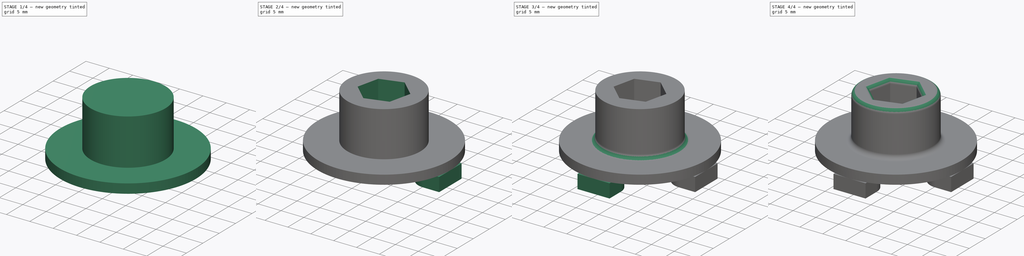
[diagram: build sequence overview — one tinted view per stage of 4, left to right]
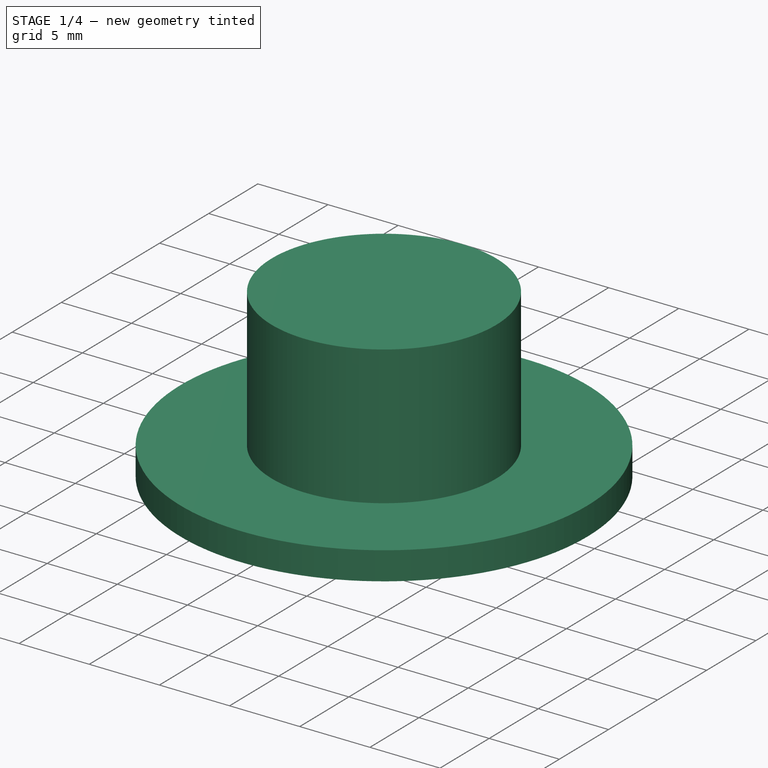
[diagram: stage 1 of 4 — iso view after this stage's code; geometry added in this stage tinted green]
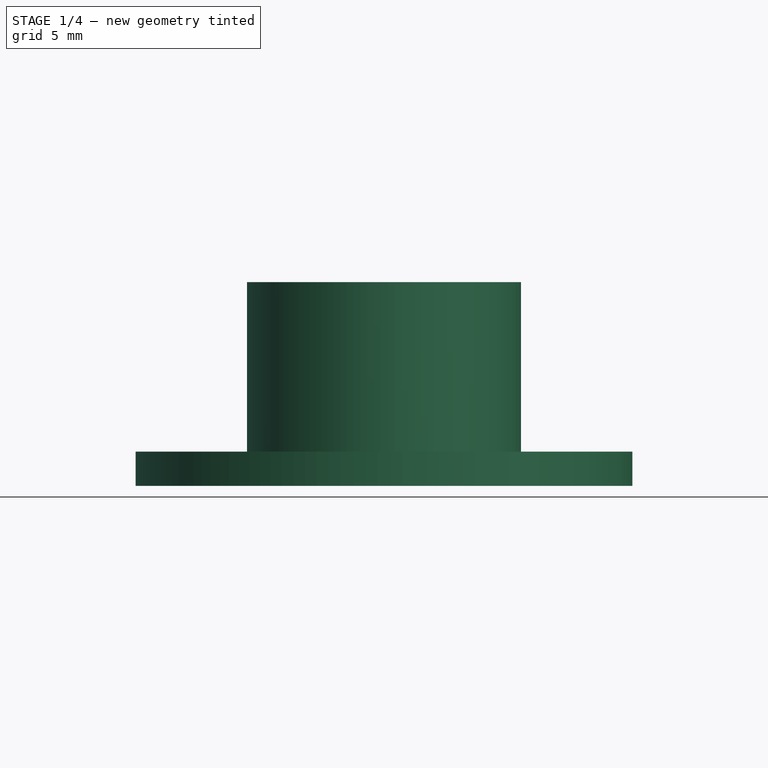
[diagram: stage 1 of 4 — front view after this stage's code; geometry added in this stage tinted green]
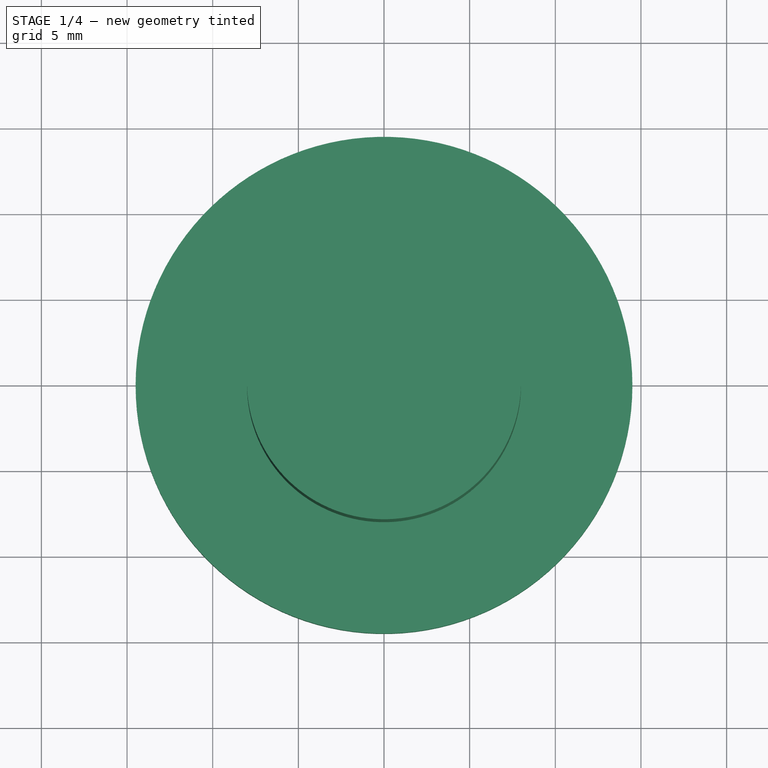
[diagram: stage 1 of 4 — top view after this stage's code; geometry added in this stage tinted green]
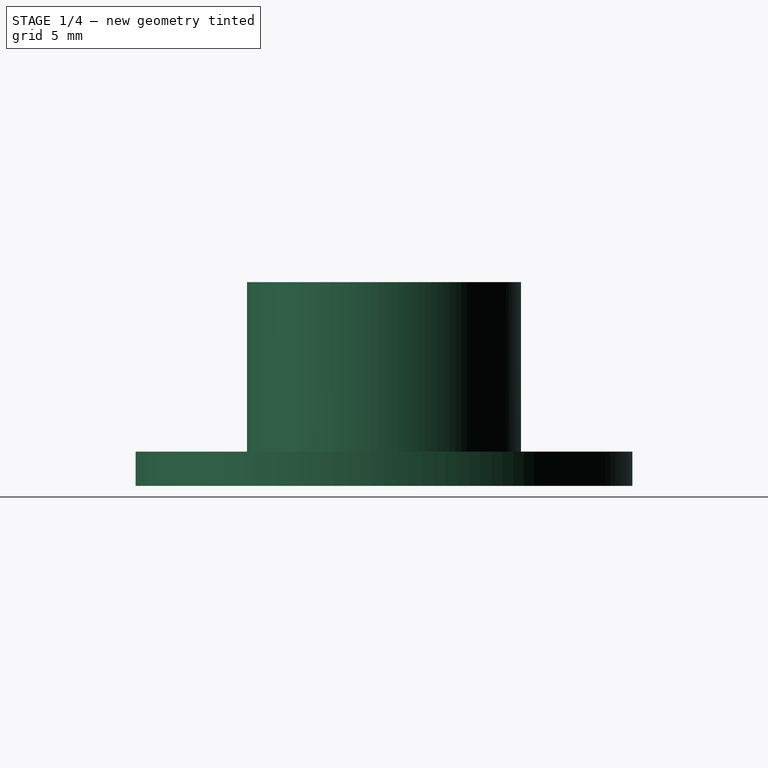
[diagram: stage 1 of 4 — right view after this stage's code; geometry added in this stage tinted green]
FCSTD DOCUMENT  (FreeCAD 0.20R29177 (Git))
Label: MotorConnectHexSocket
License: All rights reserved
LicenseURL: http://en.wikipedia.org/wiki/All_rights_reserved
objects: Sketcher::SketchObject×5, PartDesign::Pad×3, PartDesign::Fillet×3, PartDesign::Pocket×2, Spreadsheet::Sheet×1, PartDesign::PolarPattern×1, PartDesign::Body×1
note: 23 computed .brp shape members not serialized (recipe doc carries the construction recipe); baked Part::Feature solids carry a one-line shape summary decoded from their .brp

FEATURE [Spreadsheet::Sheet] Spreadsheet  label="data"
  cells = A1=centerToStand; B1(centerToStand)=11; A2=standRadius; B2(standRadius)=3.5; A3=standRectLen; B3(standRectLen)=3.5; A4=backHoleR; B4(backHoleR)=6; C4=changed frrom 5.6 to 5.7 to 6; A5=backHoleDepth; B5(backHoleDepth)=2.9; A6=hexSocketR; B6(hexSocketR)=4.965; A7=hexSocketDepth; B7(hexSocketDepth)=5; A8=topLayerPad; B8=2; A9=bottomLayerHeight; B9(bottomLayerHeight)=2; D9=bottomRadius; E9(bottomRadius)==B1 + B3; A10=standHeight; B10(standHeight)=3; D10=topLayerHeight; E10(topLayerHeight)==B7 + B5 + B8; D11=topLayerR; E11(topLayerR)==B4 + 2; F11= > centerHoleR < bottomRadius
FEATURE [Sketcher::SketchObject] Sketch  label="SketchBottom"
  FullyConstrained = true
  MapMode = 5
  Support = -> [XY_Plane]
  expr: Constraints[1] = Spreadsheet.bottomRadius
  sketch-geometry (1):
    g0: Circle CenterX=0 CenterY=0 CenterZ=0 NormalX=0 NormalY=0 NormalZ=1 AngleXU=0 Radius=14.5
  constraints (2):
    c: Coincident(g0,g-1)
    c: Radius(g0) = 14.5
FEATURE [PartDesign::Pad] Pad  label="PadBottomLayer"
  Direction = (0,0,1)
  Length = 2
  Length2 = 10
  Profile = -> Sketch
  ReferenceAxis = -> Sketch [N_Axis]
  Type = 0
  expr: Length = Spreadsheet.bottomLayerHeight
FEATURE [Sketcher::SketchObject] Sketch001  label="SketchTopLayer"
  FullyConstrained = true
  MapMode = 5
  Placement = pos=(0,0,2) rot=(0,0,1;0rad)
  Support = -> [Pad]
  expr: Constraints[1] = Spreadsheet.topLayerR
  sketch-geometry (1):
    g0: Circle CenterX=0 CenterY=0 CenterZ=0 NormalX=0 NormalY=0 NormalZ=1 AngleXU=0 Radius=8
  constraints (2):
    c: Coincident(g0,g-1)
    c: Radius(g0) = 8
FEATURE [PartDesign::Pad] Pad001  label="PadTopLayer"
  BaseFeature = -> Pad
  Direction = (0,0,1)
  Length = 9.9
  Length2 = 10
  Profile = -> Sketch001
  ReferenceAxis = -> Sketch001 [N_Axis]
  Type = 0
  expr: Length = Spreadsheet.topLayerHeight
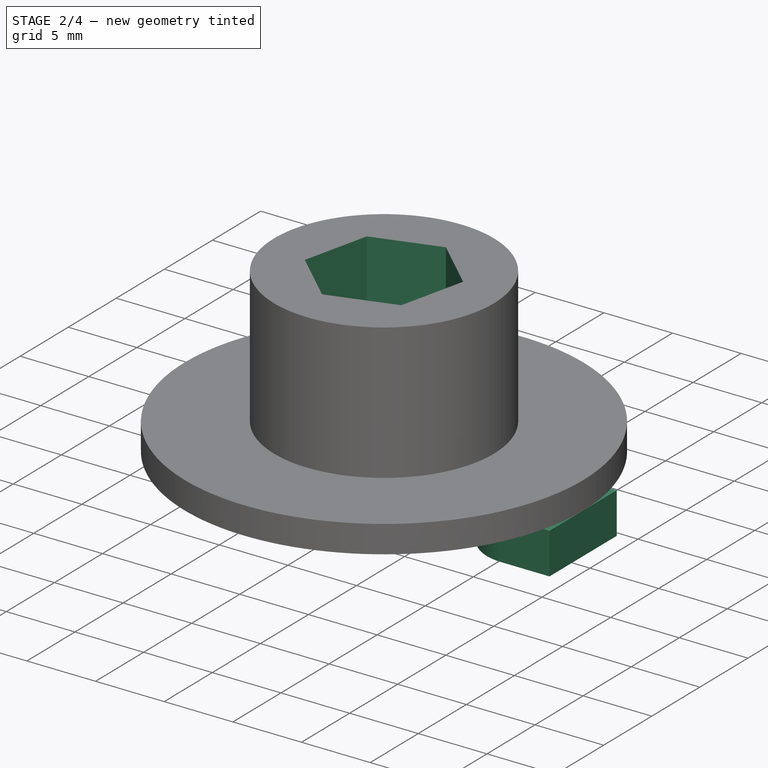
[diagram: stage 2 of 4 — iso view after this stage's code; geometry added in this stage tinted green]
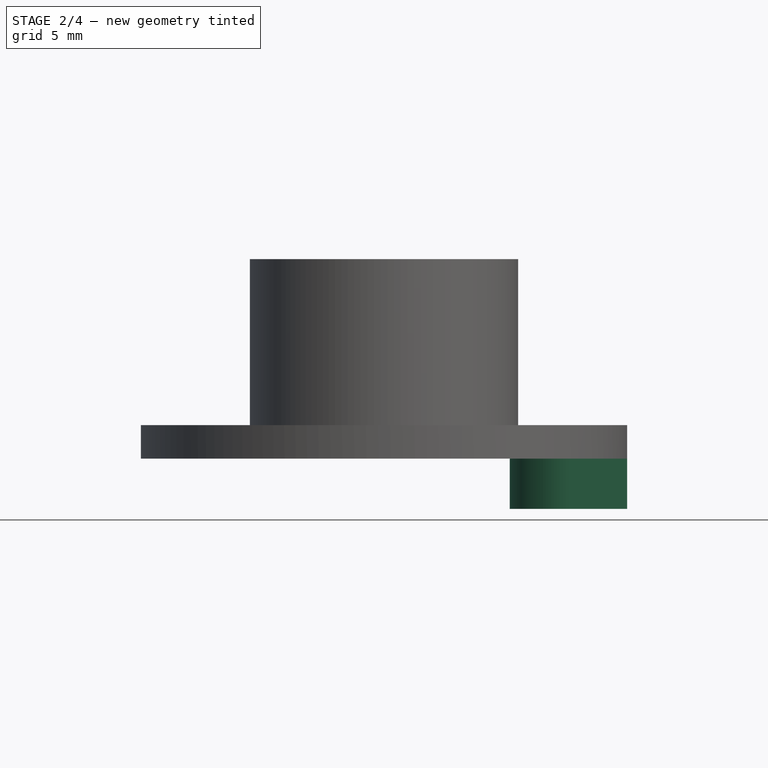
[diagram: stage 2 of 4 — front view after this stage's code; geometry added in this stage tinted green]
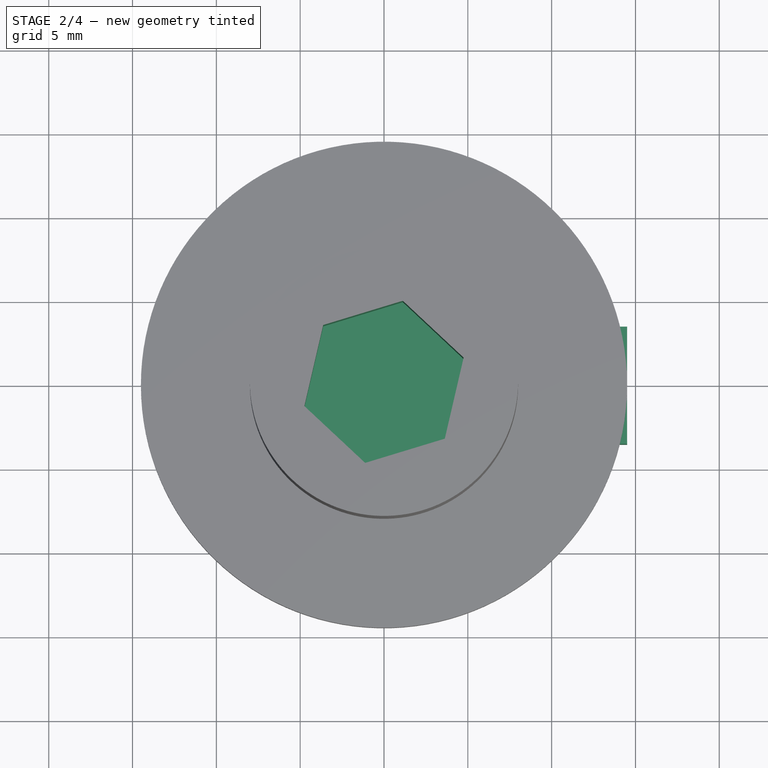
[diagram: stage 2 of 4 — top view after this stage's code; geometry added in this stage tinted green]
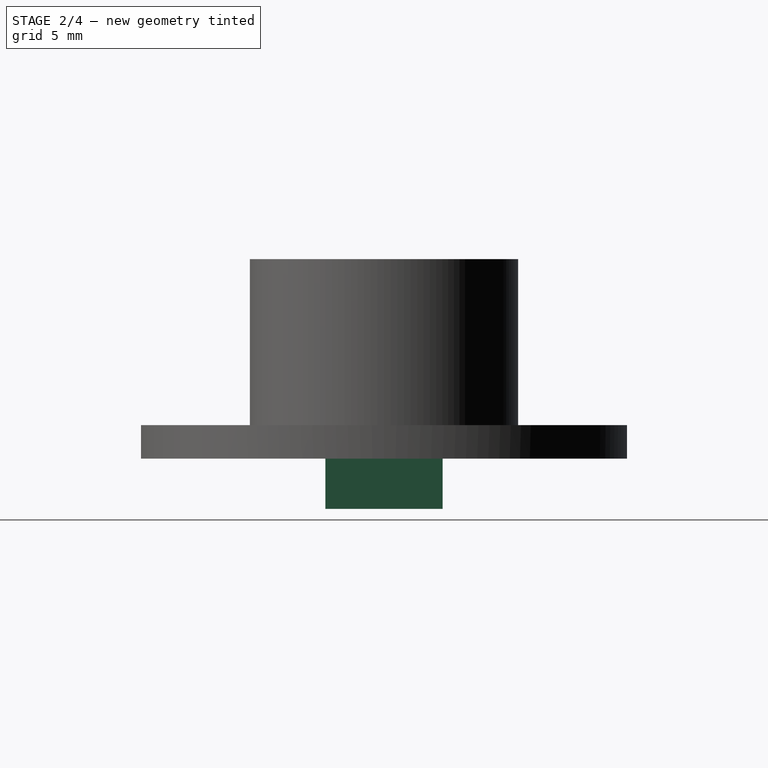
[diagram: stage 2 of 4 — right view after this stage's code; geometry added in this stage tinted green]
FEATURE [Sketcher::SketchObject] Sketch002  label="SketchHexSocket"
  FullyConstrained = false
  MapMode = 5
  Placement = pos=(0,0,11.9) rot=(0,0,1;0rad)
  Support = -> [Pad001]
  expr: Constraints[18] = Spreadsheet.hexSocketR
  sketch-geometry (7):
    g0: LineSegment StartX=3.62667 StartY=-3.39095 StartZ=0 EndX=4.74998 EndY=1.44531 EndZ=0
    g1: LineSegment StartX=4.74998 StartY=1.44531 StartZ=0 EndX=1.12331 EndY=4.83626 EndZ=0
    g2: LineSegment StartX=1.12331 StartY=4.83626 StartZ=0 EndX=-3.62667 EndY=3.39095 EndZ=0
    g3: LineSegment StartX=-3.62667 StartY=3.39095 StartZ=0 EndX=-4.74998 EndY=-1.44531 EndZ=0
    g4: LineSegment StartX=-4.74998 StartY=-1.44531 StartZ=0 EndX=-1.12331 EndY=-4.83626 EndZ=0
    g5: LineSegment StartX=-1.12331 StartY=-4.83626 StartZ=0 EndX=3.62667 EndY=-3.39095 EndZ=0
    g6: Circle CenterX=0 CenterY=0 CenterZ=0 NormalX=0 NormalY=0 NormalZ=1 AngleXU=0 Radius=4.965
  constraints (15):
    c: Coincident(g0,g1)
    c: Coincident(g1,g2)
    c: Coincident(g2,g3)
    c: Coincident(g3,g4)
    c: Coincident(g4,g5)
    c: Coincident(g5,g0)
    c: Equal(g0, g1-g5) x5
    c: PointOnObject(g0,g6)
    c: PointOnObject(g1,g6)
    c: PointOnObject(g2,g6)
    c: PointOnObject(g3,g6)
    c: PointOnObject(g4,g6)
    c: PointOnObject(g5,g6)
    c: Coincident(g6,g-1)
    c: Radius(g6) = 4.965
FEATURE [PartDesign::Pocket] Pocket  label="PocketSocket"
  BaseFeature = -> Pad001
  Direction = (0,0,-1)
  Length = 5
  Length2 = 5
  Profile = -> Sketch002
  ReferenceAxis = -> Sketch002 [N_Axis]
  Type = 0
  expr: Length = Spreadsheet.hexSocketDepth
FEATURE [Sketcher::SketchObject] Sketch003  label="SketchStandsRoundLeg"
  FullyConstrained = false
  MapMode = 5
  Placement = pos=(0,0,0) rot=(1,0,0;3.14159rad)
  Support = -> [Pocket]
  expr: Constraints[1] = Spreadsheet.centerToStand
  expr: Constraints[2] = Spreadsheet.standRadius
  expr: Constraints[8] = Spreadsheet.standRadius * 2
  expr: Constraints[9] = Spreadsheet.standRectLen
  sketch-geometry (4):
    g0: ArcOfCircle CenterX=11 CenterY=0 CenterZ=0 NormalX=0 NormalY=0 NormalZ=1 AngleXU=0 Radius=3.5 StartAngle=1.5708 EndAngle=4.71239
    g1: LineSegment StartX=11 StartY=3.5 StartZ=0 EndX=14.5 EndY=3.5 EndZ=0
    g2: LineSegment StartX=14.5 StartY=3.5 StartZ=0 EndX=14.5 EndY=-3.5 EndZ=0
    g3: LineSegment StartX=14.5 StartY=-3.5 StartZ=0 EndX=11 EndY=-3.5 EndZ=0
  constraints (12):
    c: PointOnObject(g0,g-1)
    c: DistanceX(g-1,g0) = 11
    c: Radius(g0) = 3.5
    c: Coincident(g1,g2)
    c: Coincident(g2,g3)
    c: Horizontal(g1)
    c: Horizontal(g3)
    c: Vertical(g2)
    c: DistanceY(g2,g1) = 7
    c: DistanceX(g1,g1) = 3.5
    c: Coincident(g0,g3)
    c: Coincident(g0,g1)
FEATURE [PartDesign::Pad] Pad002  label="PadStand"
  BaseFeature = -> Pocket
  Direction = (0,0,-1)
  Length = 3
  Length2 = 10
  Profile = -> Sketch003
  ReferenceAxis = -> Sketch003 [N_Axis]
  Type = 0
  expr: Length = Spreadsheet.standHeight
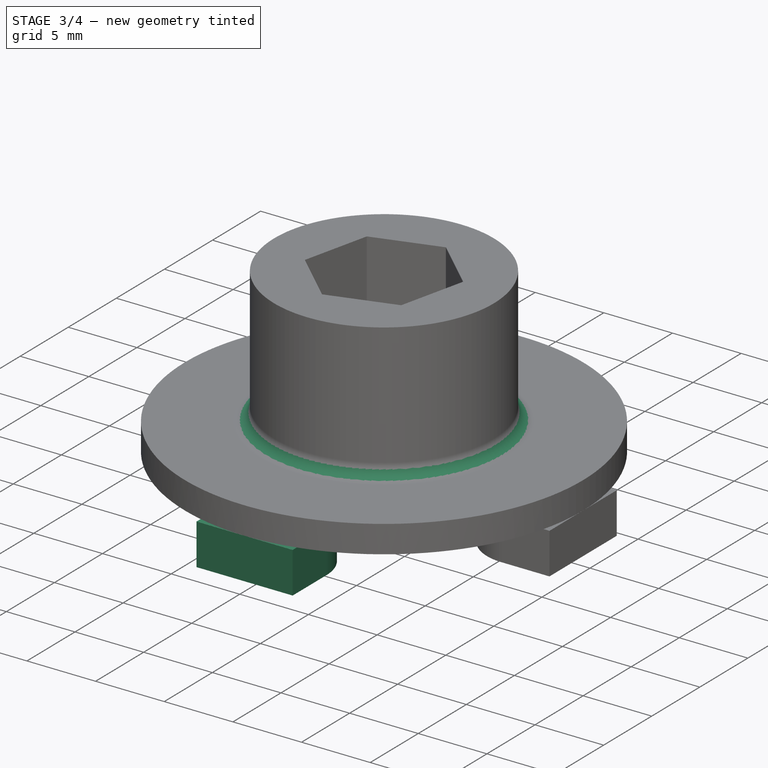
[diagram: stage 3 of 4 — iso view after this stage's code; geometry added in this stage tinted green]
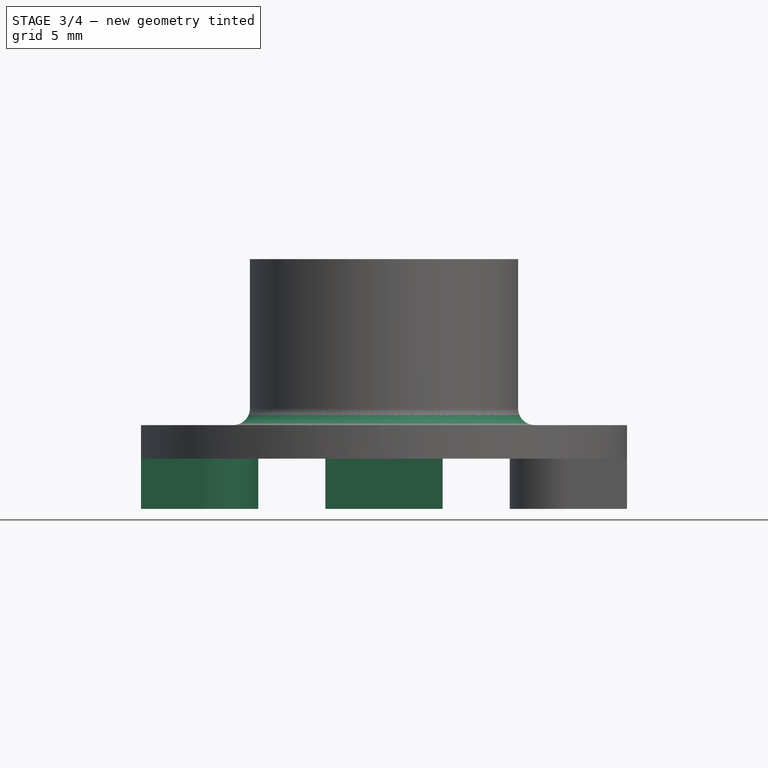
[diagram: stage 3 of 4 — front view after this stage's code; geometry added in this stage tinted green]
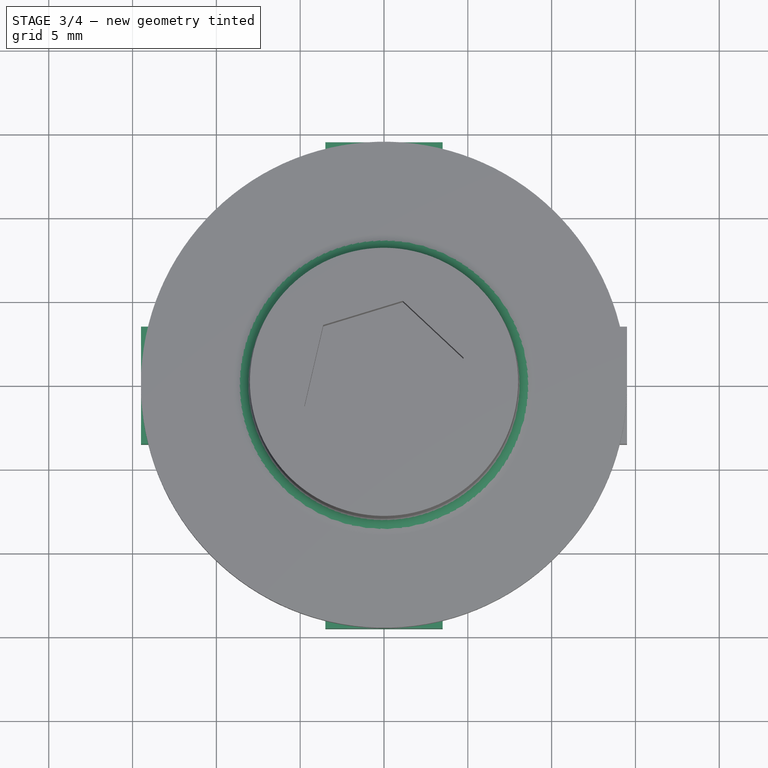
[diagram: stage 3 of 4 — top view after this stage's code; geometry added in this stage tinted green]
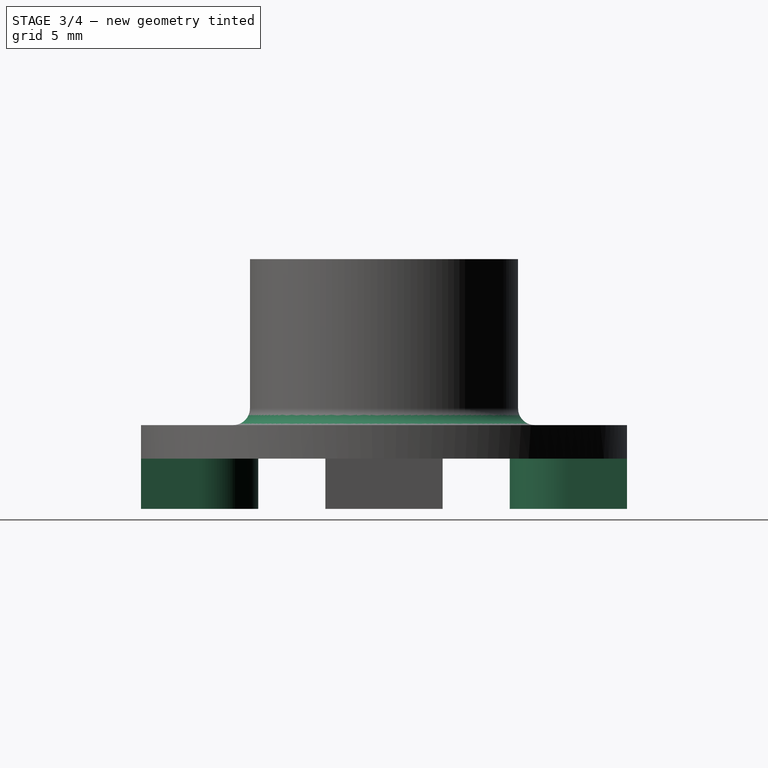
[diagram: stage 3 of 4 — right view after this stage's code; geometry added in this stage tinted green]
FEATURE [PartDesign::PolarPattern] PolarPattern
  Angle = 360
  Axis = -> Sketch003 [N_Axis]
  BaseFeature = -> Pad002
  Occurrences = 4
  Originals = -> [Pad002]
FEATURE [Sketcher::SketchObject] Sketch004  label="SketchBackHole"
  FullyConstrained = true
  MapMode = 5
  Placement = pos=(0,0,0) rot=(1,0,0;3.14159rad)
  Support = -> [PolarPattern]
  expr: Constraints[1] = Spreadsheet.backHoleR
  sketch-geometry (1):
    g0: Circle CenterX=0 CenterY=0 CenterZ=0 NormalX=0 NormalY=0 NormalZ=1 AngleXU=0 Radius=6
  constraints (2):
    c: Coincident(g0,g-1)
    c: Radius(g0) = 6
FEATURE [PartDesign::Pocket] Pocket001  label="PocketBackHole"
  BaseFeature = -> PolarPattern
  Direction = (0,0,1)
  Length = 2.9
  Length2 = 5
  Profile = -> Sketch004
  ReferenceAxis = -> Sketch004 [N_Axis]
  Type = 0
  expr: Length = Spreadsheet.backHoleDepth
FEATURE [PartDesign::Fillet] Fillet
  Base = -> Pocket001 [Edge15]
  BaseFeature = -> Pocket001
  Radius = 1
  SupportTransform = false
  UseAllEdges = false
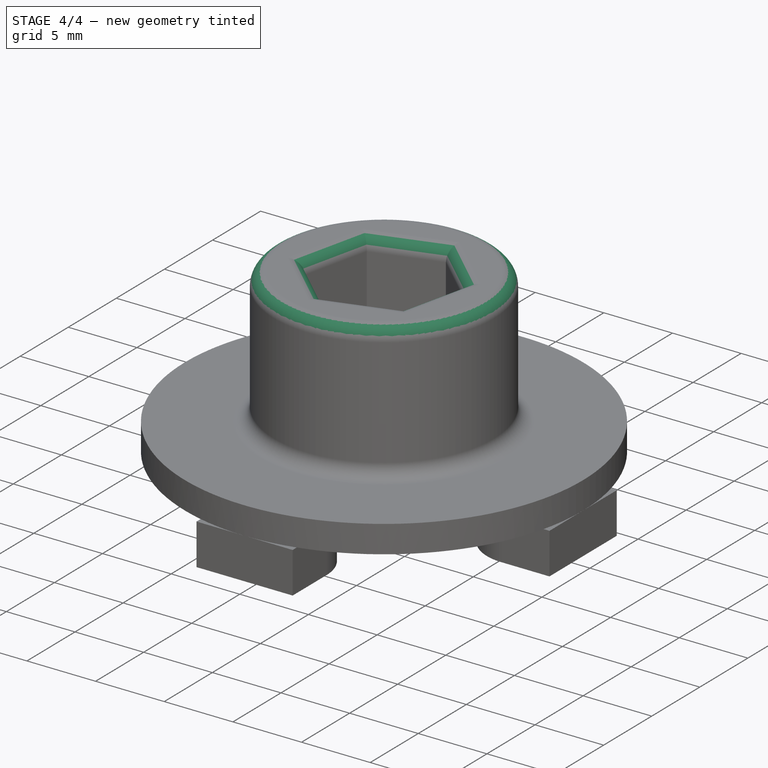
[diagram: stage 4 of 4 — iso view after this stage's code; geometry added in this stage tinted green]
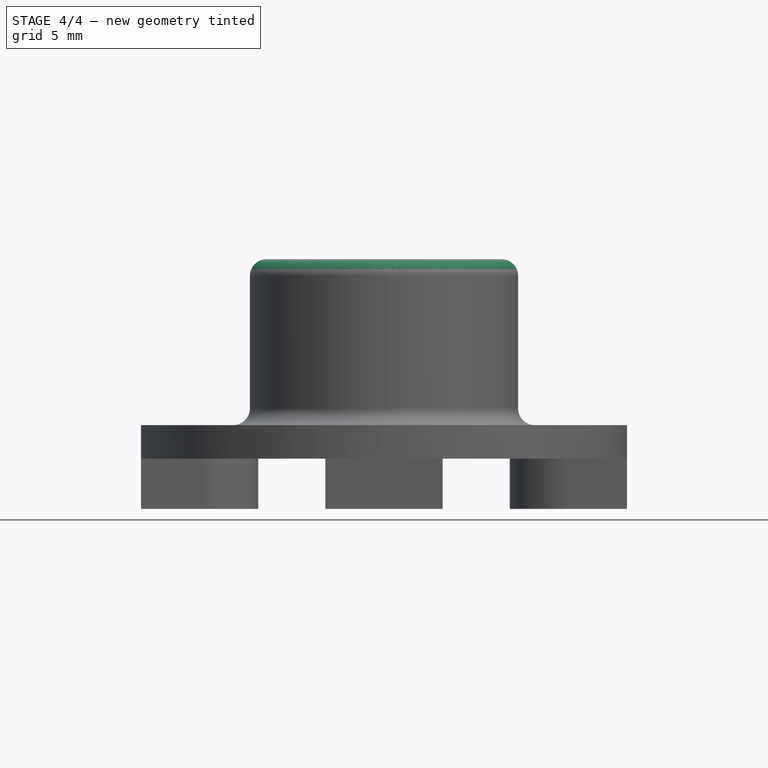
[diagram: stage 4 of 4 — front view after this stage's code; geometry added in this stage tinted green]
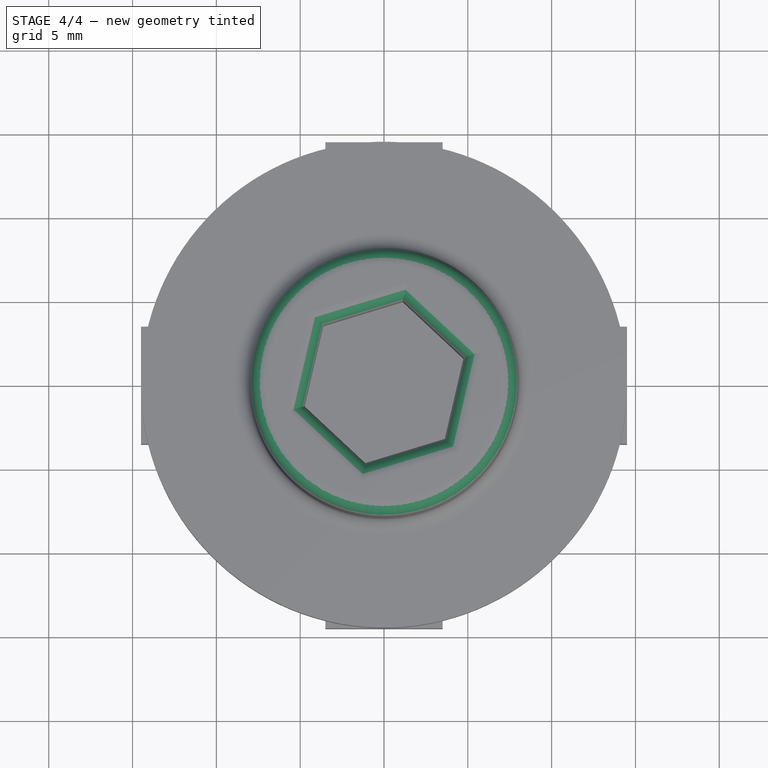
[diagram: stage 4 of 4 — top view after this stage's code; geometry added in this stage tinted green]
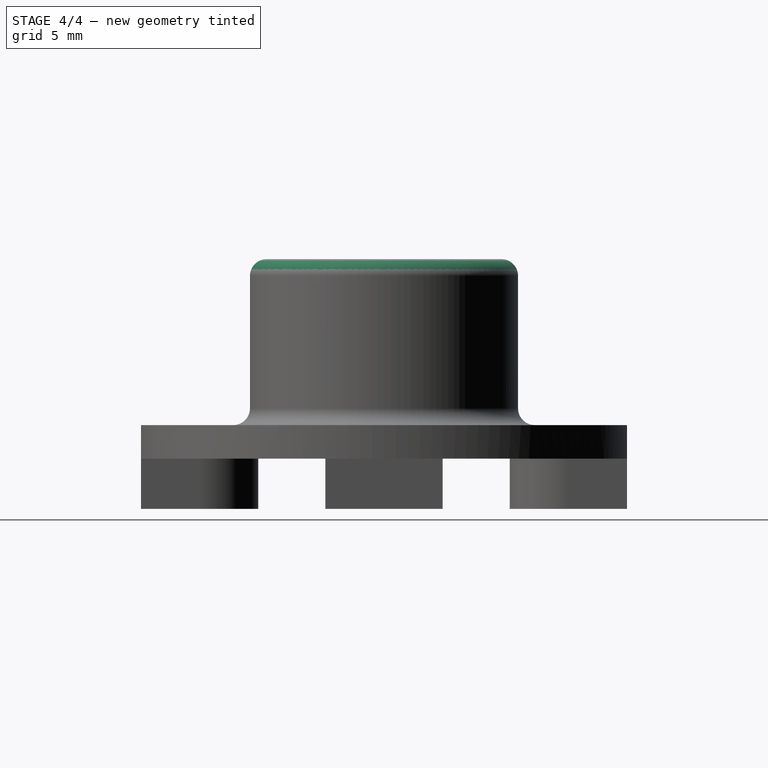
[diagram: stage 4 of 4 — right view after this stage's code; geometry added in this stage tinted green]
FEATURE [PartDesign::Fillet] Fillet001
  Base = -> Fillet [Edge19]
  BaseFeature = -> Fillet
  Radius = 1
  SupportTransform = false
  UseAllEdges = false
FEATURE [PartDesign::Fillet] Fillet002
  Base = -> Fillet001 [Edge8,Edge13,Edge12,Edge11,Edge10,Edge9]
  BaseFeature = -> Fillet001
  Radius = 1
  SupportTransform = false
  UseAllEdges = false
FEATURE [PartDesign::Body] Body
  Group = -> [Sketch,Pad,Sketch001,Pad001,Sketch002,Pocket,Sketch003,Pad002,PolarPattern,Sketch004,Pocket001,Fillet,Fillet001,Fillet002]
  Origin = -> Origin
  Tip = -> Fillet002
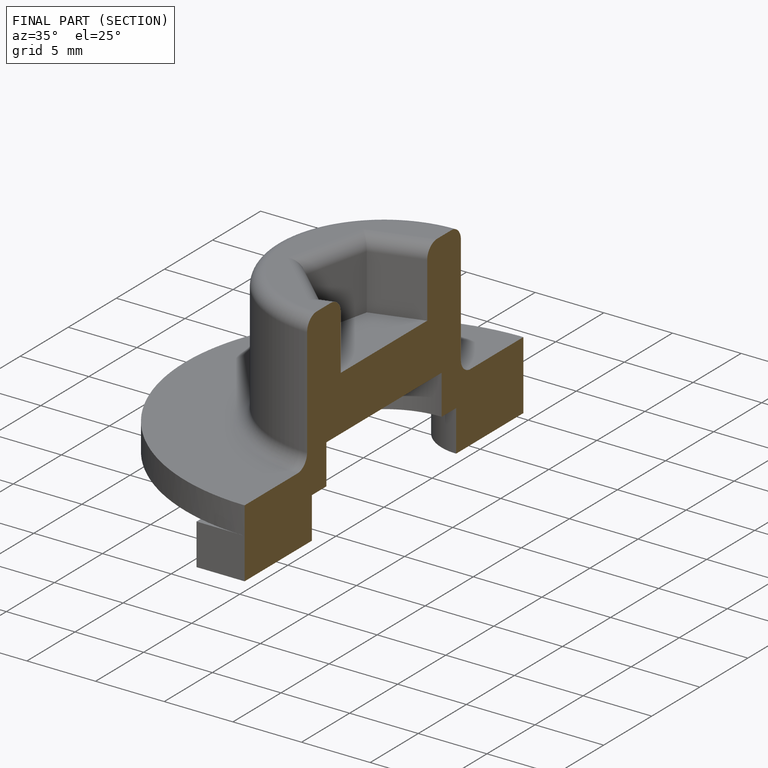
[diagram: finished part — half-section view (interior)]
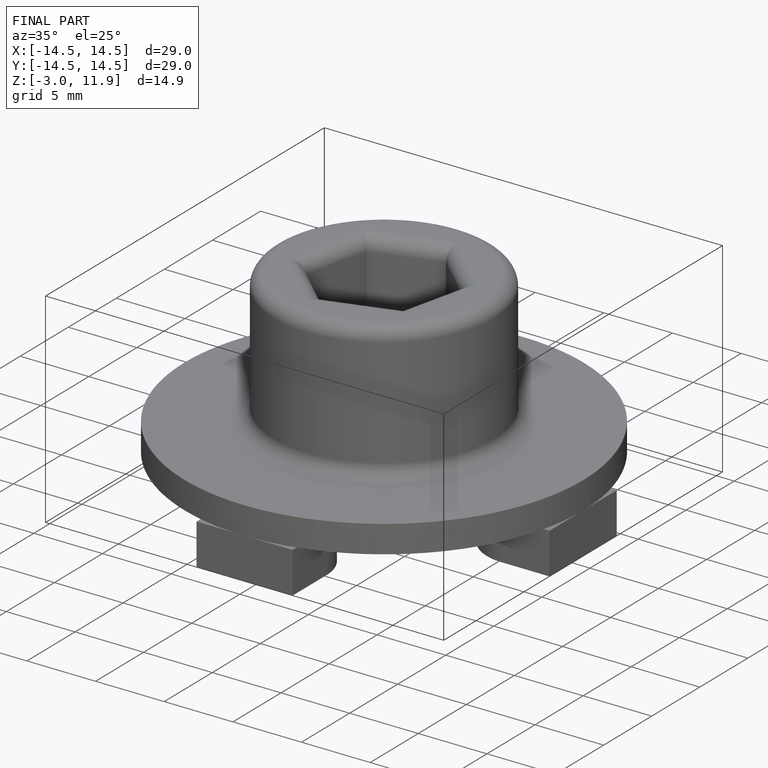
[diagram: finished part — iso view with bounding-box wireframe]
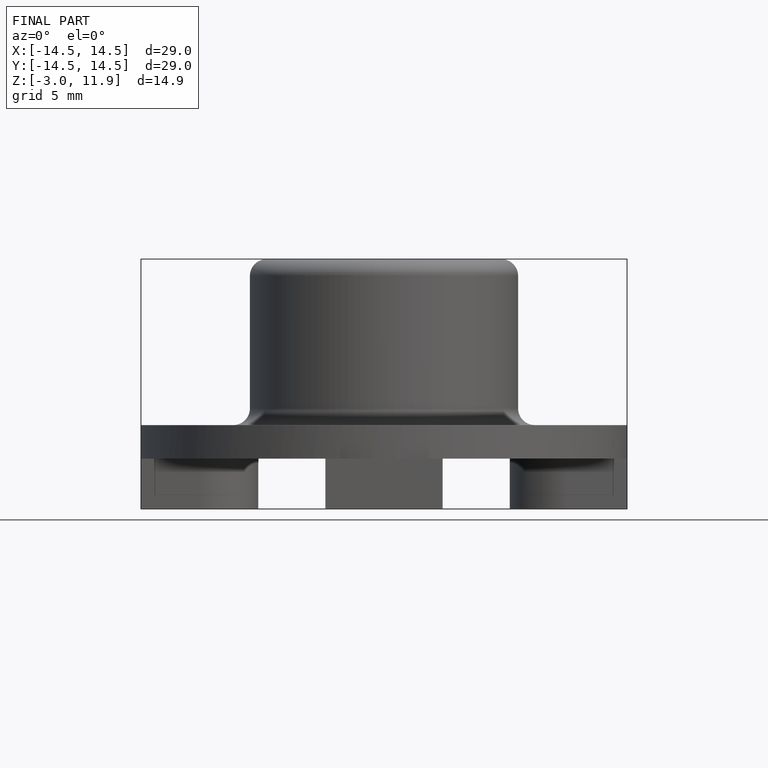
[diagram: finished part — front view with bounding-box wireframe]
